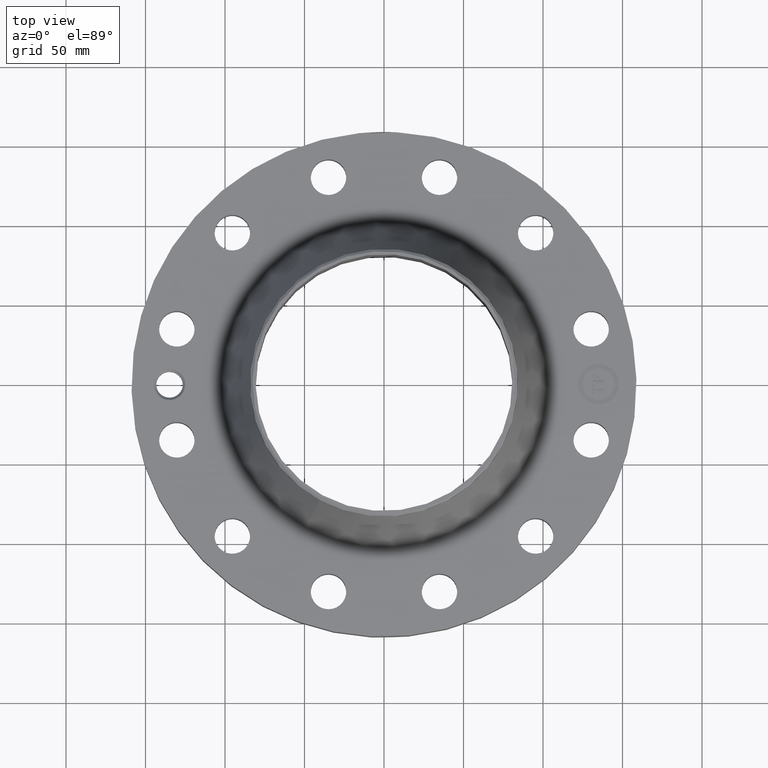
[diagram: clean part render]
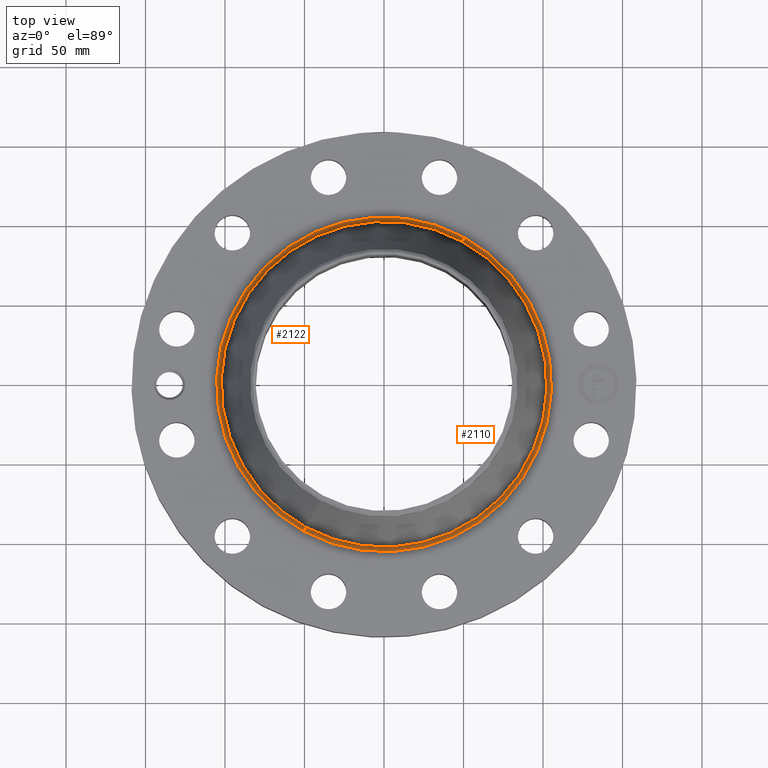
[diagram: same view with one multi-face feature highlighted, each face labeled with its STEP entity id]
A machine part, top view. The highlighted faces form ONE feature: a constant-radius fillet chain: 2 tangent blend faces with common blend radius 3.048 mm. The faces share edges in the B-rep.
Their STEP definitions:
[1] entity #2122 (Torus):
#573=AXIS2_PLACEMENT_3D('Circle Axis2P3D',#571,#572,$) ;
#2083=AXIS2_PLACEMENT_3D('Torus Axis2P3D',#2080,#2081,#2082) ;
#2087=AXIS2_PLACEMENT_3D('Circle Axis2P3D',#2085,#2086,$) ;
#2101=AXIS2_PLACEMENT_3D('Circle Axis2P3D',#2099,#2100,$) ;
#2113=AXIS2_PLACEMENT_3D('Circle Axis2P3D',#2111,#2112,$) ;
#571=CARTESIAN_POINT('Axis2P3D Location',(0.,0.,1.56000000001)) ;
#575=CARTESIAN_POINT('Vertex',(-1.98747835697,-3.6380547296,1.56000000001)) ;
#577=CARTESIAN_POINT('Vertex',(1.98747835697,3.6380547296,1.56000000001)) ;
#2080=CARTESIAN_POINT('Axis2P3D Location',(0.,0.,1.68000000001)) ;
#2085=CARTESIAN_POINT('Axis2P3D Location',(1.98747835697,3.6380547296,1.68000000001)) ;
#2089=CARTESIAN_POINT('Vertex',(1.93309283,3.53850269025,1.64086426291)) ;
#2096=CARTESIAN_POINT('Vertex',(-1.93309283,-3.53850269025,1.64086426291)) ;
#2099=CARTESIAN_POINT('Axis2P3D Location',(-1.98747835697,-3.6380547296,1.68000000001)) ;
#2111=CARTESIAN_POINT('Axis2P3D Location',(0.,0.,1.64086426291)) ;
#572=DIRECTION('Axis2P3D Direction',(0.,0.,-0.0393700787402)) ;
#2081=DIRECTION('Axis2P3D Direction',(0.,0.,-0.0393700787402)) ;
#2082=DIRECTION('Axis2P3D XDirection',(-0.0188750212049,-0.0345504945626,0.)) ;
#2086=DIRECTION('Axis2P3D Direction',(-0.0345504945626,0.0188750212049,0.)) ;
#2100=DIRECTION('Axis2P3D Direction',(0.0345504945626,-0.0188750212049,0.)) ;
#2112=DIRECTION('Axis2P3D Direction',(0.,0.,-0.0393700787402)) ;
#2117=ORIENTED_EDGE('',*,*,#579,.F.) ;
#2118=ORIENTED_EDGE('',*,*,#2103,.T.) ;
#2119=ORIENTED_EDGE('',*,*,#2115,.T.) ;
#2120=ORIENTED_EDGE('',*,*,#2091,.F.) ;
#2122=ADVANCED_FACE('PartBody',(#2121),#2084,.F.) ;
#574=CIRCLE('generated circle',#573,4.14554127166) ;
#2088=CIRCLE('generated circle',#2087,0.12) ;
#2102=CIRCLE('generated circle',#2101,0.12) ;
#2114=CIRCLE('generated circle',#2113,4.03210232737) ;
#2084=TOROIDAL_SURFACE('homeo Torus',#2083,4.14554127166,0.12) ;
#579=EDGE_CURVE('',#576,#578,#574,.T.) ;
#2091=EDGE_CURVE('',#578,#2090,#2088,.T.) ;
#2103=EDGE_CURVE('',#576,#2097,#2102,.T.) ;
#2115=EDGE_CURVE('',#2097,#2090,#2114,.T.) ;
#2116=EDGE_LOOP('',(#2117,#2118,#2119,#2120)) ;
#2121=FACE_OUTER_BOUND('',#2116,.T.) ;
#576=VERTEX_POINT('',#575) ;
#578=VERTEX_POINT('',#577) ;
#2090=VERTEX_POINT('',#2089) ;
#2097=VERTEX_POINT('',#2096) ;
[2] entity #2110 (Torus):
#582=AXIS2_PLACEMENT_3D('Circle Axis2P3D',#580,#581,$) ;
#2083=AXIS2_PLACEMENT_3D('Torus Axis2P3D',#2080,#2081,#2082) ;
#2087=AXIS2_PLACEMENT_3D('Circle Axis2P3D',#2085,#2086,$) ;
#2094=AXIS2_PLACEMENT_3D('Circle Axis2P3D',#2092,#2093,$) ;
#2101=AXIS2_PLACEMENT_3D('Circle Axis2P3D',#2099,#2100,$) ;
#575=CARTESIAN_POINT('Vertex',(-1.98747835697,-3.6380547296,1.56000000001)) ;
#577=CARTESIAN_POINT('Vertex',(1.98747835697,3.6380547296,1.56000000001)) ;
#580=CARTESIAN_POINT('Axis2P3D Location',(0.,0.,1.56000000001)) ;
#2080=CARTESIAN_POINT('Axis2P3D Location',(0.,0.,1.68000000001)) ;
#2085=CARTESIAN_POINT('Axis2P3D Location',(1.98747835697,3.6380547296,1.68000000001)) ;
#2089=CARTESIAN_POINT('Vertex',(1.93309283,3.53850269025,1.64086426291)) ;
#2092=CARTESIAN_POINT('Axis2P3D Location',(0.,0.,1.64086426291)) ;
#2096=CARTESIAN_POINT('Vertex',(-1.93309283,-3.53850269025,1.64086426291)) ;
#2099=CARTESIAN_POINT('Axis2P3D Location',(-1.98747835697,-3.6380547296,1.68000000001)) ;
#581=DIRECTION('Axis2P3D Direction',(0.,0.,-0.0393700787402)) ;
#2081=DIRECTION('Axis2P3D Direction',(0.,0.,-0.0393700787402)) ;
#2082=DIRECTION('Axis2P3D XDirection',(-0.0188750212049,-0.0345504945626,0.)) ;
#2086=DIRECTION('Axis2P3D Direction',(-0.0345504945626,0.0188750212049,0.)) ;
#2093=DIRECTION('Axis2P3D Direction',(0.,0.,-0.0393700787402)) ;
#2100=DIRECTION('Axis2P3D Direction',(0.0345504945626,-0.0188750212049,0.)) ;
#2105=ORIENTED_EDGE('',*,*,#584,.F.) ;
#2106=ORIENTED_EDGE('',*,*,#2091,.T.) ;
#2107=ORIENTED_EDGE('',*,*,#2098,.T.) ;
#2108=ORIENTED_EDGE('',*,*,#2103,.F.) ;
#2110=ADVANCED_FACE('PartBody',(#2109),#2084,.F.) ;
#583=CIRCLE('generated circle',#582,4.14554127166) ;
#2088=CIRCLE('generated circle',#2087,0.12) ;
#2095=CIRCLE('generated circle',#2094,4.03210232737) ;
#2102=CIRCLE('generated circle',#2101,0.12) ;
#2084=TOROIDAL_SURFACE('homeo Torus',#2083,4.14554127166,0.12) ;
#584=EDGE_CURVE('',#578,#576,#583,.T.) ;
#2091=EDGE_CURVE('',#578,#2090,#2088,.T.) ;
#2098=EDGE_CURVE('',#2090,#2097,#2095,.T.) ;
#2103=EDGE_CURVE('',#576,#2097,#2102,.T.) ;
#2104=EDGE_LOOP('',(#2105,#2106,#2107,#2108)) ;
#2109=FACE_OUTER_BOUND('',#2104,.T.) ;
#576=VERTEX_POINT('',#575) ;
#578=VERTEX_POINT('',#577) ;
#2090=VERTEX_POINT('',#2089) ;
#2097=VERTEX_POINT('',#2096) ;